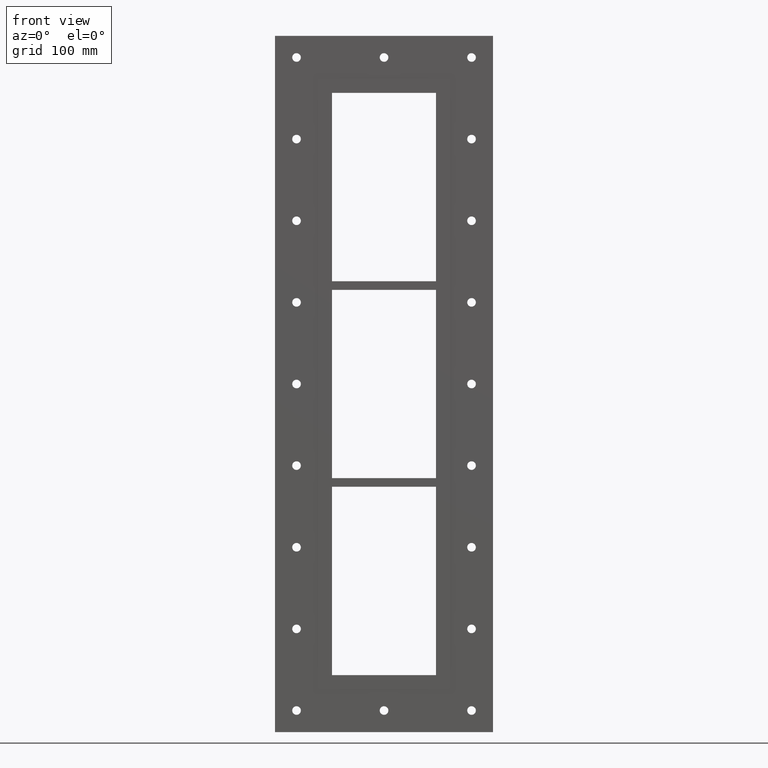
[diagram: clean part render]
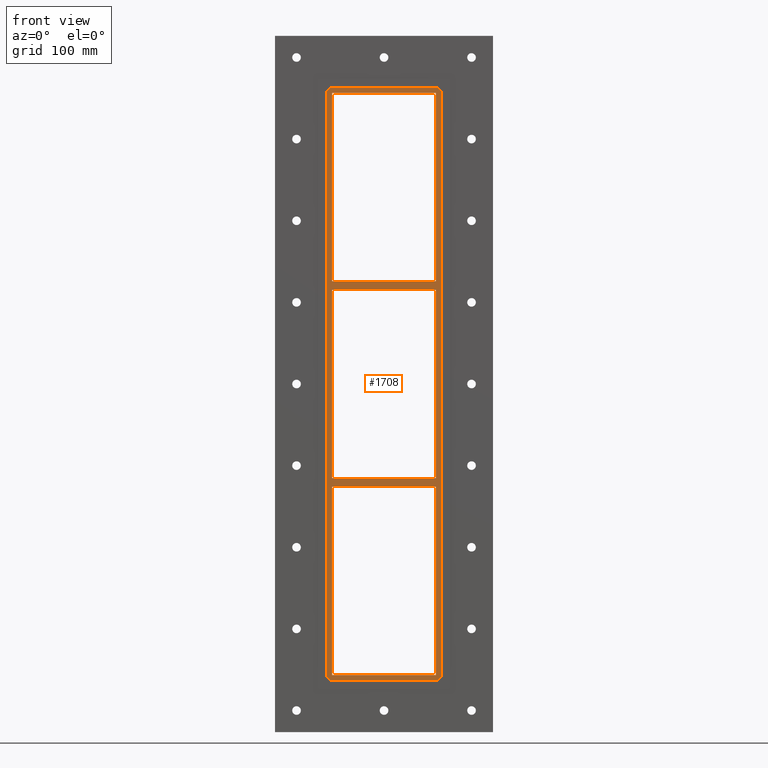
[diagram: same view with one face highlighted and labeled with its STEP entity id]
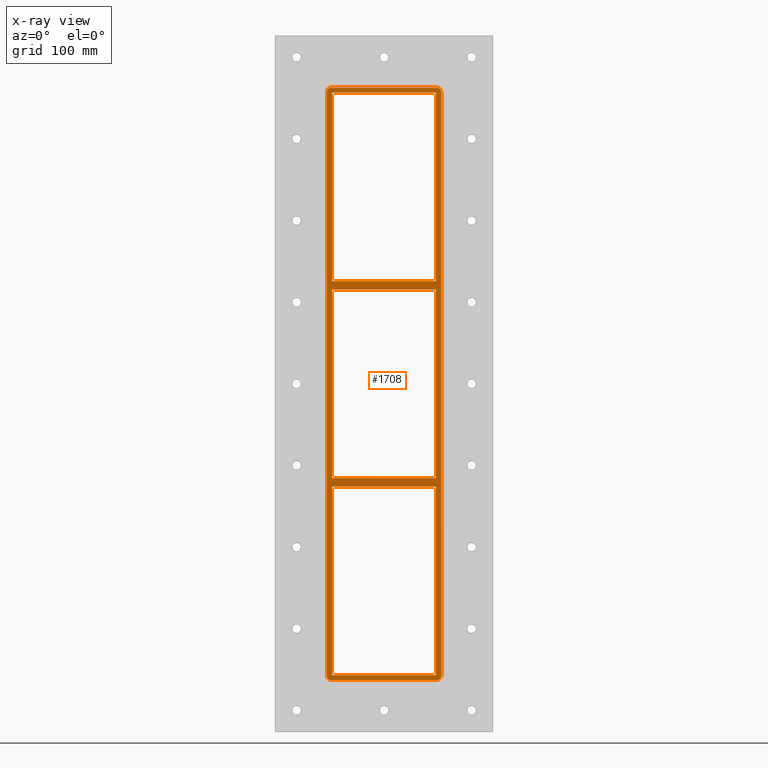
[diagram: x-ray of the same camera — body ghosted, the highlighted face saturated]
A machine part, front view. The second image highlights one B-rep face of the part: STEP entity #1708.
The next image is the same camera in x-ray: the body ghosted, the highlighted face saturated — about 0% of this face is hidden behind the body in this view.
In plain terms, the highlighted planar face has unit normal (0, 1, 0).
Its self-contained STEP definition (entity closure, byte-faithful):
#633=CARTESIAN_POINT('',(60.249999999996362,-3.0,108.99999999998904));
#634=VERTEX_POINT('',#633);
#635=CARTESIAN_POINT('',(-60.249999999999673,-3.0,108.99999999998886));
#636=VERTEX_POINT('',#635);
#637=CARTESIAN_POINT('',(60.249999999996362,-3.0,108.99999999998904));
#638=DIRECTION('',(-1.0,0.0,0.0));
#639=VECTOR('',#638,120.49999999999602);
#640=LINE('',#637,#639);
#641=EDGE_CURVE('',#634,#636,#640,.T.);
#673=CARTESIAN_POINT('',(-60.249999999999673,-3.0,118.99999999999994));
#674=VERTEX_POINT('',#673);
#675=CARTESIAN_POINT('',(60.249999999999915,-3.0,118.99999999999994));
#676=VERTEX_POINT('',#675);
#677=CARTESIAN_POINT('',(-60.249999999999673,-3.0,118.99999999999994));
#678=DIRECTION('',(1.0,0.0,0.0));
#679=VECTOR('',#678,120.49999999999957);
#680=LINE('',#677,#679);
#681=EDGE_CURVE('',#674,#676,#680,.T.);
#722=CARTESIAN_POINT('',(-60.249999999999993,-3.0,337.0));
#723=VERTEX_POINT('',#722);
#730=CARTESIAN_POINT('',(-60.249999999999993,-3.0,118.99999999999994));
#731=DIRECTION('',(0.0,0.0,1.0));
#732=VECTOR('',#731,218.00000000000011);
#733=LINE('',#730,#732);
#734=EDGE_CURVE('',#674,#723,#733,.T.);
#753=CARTESIAN_POINT('',(60.249999999999915,-3.0,-109.00000000000006));
#754=VERTEX_POINT('',#753);
#761=CARTESIAN_POINT('',(60.250000000000014,-3.0,108.99999999998903));
#762=DIRECTION('',(0.0,0.0,-1.0));
#763=VECTOR('',#762,217.99999999998909);
#764=LINE('',#761,#763);
#765=EDGE_CURVE('',#634,#754,#764,.T.);
#776=CARTESIAN_POINT('',(60.250000000000014,-3.0,337.0));
#777=VERTEX_POINT('',#776);
#778=CARTESIAN_POINT('',(60.250000000000014,-3.0,337.0));
#779=DIRECTION('',(0.0,0.0,-1.0));
#780=VECTOR('',#779,218.00000000000006);
#781=LINE('',#778,#780);
#782=EDGE_CURVE('',#777,#676,#781,.T.);
#806=CARTESIAN_POINT('',(60.249999999996362,-3.0,-119.00000000001097));
#807=VERTEX_POINT('',#806);
#808=CARTESIAN_POINT('',(-60.249999999999673,-3.0,-119.00000000001114));
#809=VERTEX_POINT('',#808);
#810=CARTESIAN_POINT('',(60.249999999996362,-3.0,-119.00000000001097));
#811=DIRECTION('',(-1.0,0.0,0.0));
#812=VECTOR('',#811,120.49999999999602);
#813=LINE('',#810,#812);
#814=EDGE_CURVE('',#807,#809,#813,.T.);
#846=CARTESIAN_POINT('',(-60.249999999999673,-3.0,-109.00000000000006));
#847=VERTEX_POINT('',#846);
#848=CARTESIAN_POINT('',(-60.249999999999673,-3.0,-109.00000000000006));
#849=DIRECTION('',(1.0,0.0,0.0));
#850=VECTOR('',#849,120.49999999999957);
#851=LINE('',#848,#850);
#852=EDGE_CURVE('',#847,#754,#851,.T.);
#878=CARTESIAN_POINT('',(-60.249999999999993,-3.0,-109.00000000000004));
#879=DIRECTION('',(0.0,0.0,1.0));
#880=VECTOR('',#879,217.99999999998892);
#881=LINE('',#878,#880);
#882=EDGE_CURVE('',#847,#636,#881,.T.);
#908=CARTESIAN_POINT('',(60.250000000000014,-3.0,-337.0));
#909=VERTEX_POINT('',#908);
#916=CARTESIAN_POINT('',(60.250000000000014,-3.0,-119.00000000001097));
#917=DIRECTION('',(0.0,0.0,-1.0));
#918=VECTOR('',#917,217.99999999998909);
#919=LINE('',#916,#918);
#920=EDGE_CURVE('',#807,#909,#919,.T.);
#1339=CARTESIAN_POINT('',(-60.249999999999993,-3.0,-337.0));
#1340=VERTEX_POINT('',#1339);
#1341=CARTESIAN_POINT('',(-60.249999999999993,-3.0,-337.0));
#1342=DIRECTION('',(0.0,0.0,1.0));
#1343=VECTOR('',#1342,217.99999999998886);
#1344=LINE('',#1341,#1343);
#1345=EDGE_CURVE('',#1340,#809,#1344,.T.);
#1370=CARTESIAN_POINT('',(60.25,-3.0,343.00000000000006));
#1371=VERTEX_POINT('',#1370);
#1378=CARTESIAN_POINT('',(66.25,-3.0,337.0));
#1379=VERTEX_POINT('',#1378);
#1380=CARTESIAN_POINT('',(60.25,-3.0,337.0));
#1381=DIRECTION('',(0.0,1.0,0.0));
#1382=DIRECTION('',(0.707106781186551,0.0,0.707106781186544));
#1383=AXIS2_PLACEMENT_3D('',#1380,#1381,#1382);
#1384=CIRCLE('',#1383,6.0);
#1385=EDGE_CURVE('',#1371,#1379,#1384,.T.);
#1435=CARTESIAN_POINT('',(66.25,-3.0,-336.99999999999994));
#1436=VERTEX_POINT('',#1435);
#1437=CARTESIAN_POINT('',(66.25,-3.0,-336.99999999999994));
#1438=DIRECTION('',(0.0,0.0,1.0));
#1439=VECTOR('',#1438,674.0);
#1440=LINE('',#1437,#1439);
#1441=EDGE_CURVE('',#1436,#1379,#1440,.T.);
#1482=CARTESIAN_POINT('',(-60.25,-3.0,343.00000000000006));
#1483=VERTEX_POINT('',#1482);
#1490=CARTESIAN_POINT('',(60.25,-3.0,343.00000000000006));
#1491=DIRECTION('',(-1.0,0.0,0.0));
#1492=VECTOR('',#1491,120.5);
#1493=LINE('',#1490,#1492);
#1494=EDGE_CURVE('',#1371,#1483,#1493,.T.);
#1507=CARTESIAN_POINT('',(60.25,-3.0,-343.00000000000006));
#1508=VERTEX_POINT('',#1507);
#1509=CARTESIAN_POINT('',(60.25,-3.0,-337.0));
#1510=DIRECTION('',(0.0,1.0,0.0));
#1511=DIRECTION('',(0.707106781186551,0.0,-0.707106781186544));
#1512=AXIS2_PLACEMENT_3D('',#1509,#1510,#1511);
#1513=CIRCLE('',#1512,6.0);
#1514=EDGE_CURVE('',#1436,#1508,#1513,.T.);
#1556=CARTESIAN_POINT('',(-66.25,-3.0,336.99999999999994));
#1557=VERTEX_POINT('',#1556);
#1564=CARTESIAN_POINT('',(-60.25,-3.0,337.0));
#1565=DIRECTION('',(0.0,1.0,0.0));
#1566=DIRECTION('',(-0.707106781186551,0.0,0.707106781186544));
#1567=AXIS2_PLACEMENT_3D('',#1564,#1565,#1566);
#1568=CIRCLE('',#1567,6.0);
#1569=EDGE_CURVE('',#1557,#1483,#1568,.T.);
#1582=CARTESIAN_POINT('',(-60.25,-3.0,-343.00000000000006));
#1583=VERTEX_POINT('',#1582);
#1584=CARTESIAN_POINT('',(-60.25,-3.0,-343.00000000000006));
#1585=DIRECTION('',(1.0,0.0,0.0));
#1586=VECTOR('',#1585,120.5);
#1587=LINE('',#1584,#1586);
#1588=EDGE_CURVE('',#1583,#1508,#1587,.T.);
#1629=CARTESIAN_POINT('',(-66.25,-3.0,-337.0));
#1630=VERTEX_POINT('',#1629);
#1637=CARTESIAN_POINT('',(-66.25,-3.0,336.99999999999994));
#1638=DIRECTION('',(0.0,0.0,-1.0));
#1639=VECTOR('',#1638,674.0);
#1640=LINE('',#1637,#1639);
#1641=EDGE_CURVE('',#1557,#1630,#1640,.T.);
#1654=CARTESIAN_POINT('',(-60.25,-3.0,-337.0));
#1655=DIRECTION('',(0.0,1.0,0.0));
#1656=DIRECTION('',(-0.707106781186551,0.0,-0.707106781186544));
#1657=AXIS2_PLACEMENT_3D('',#1654,#1655,#1656);
#1658=CIRCLE('',#1657,6.0);
#1659=EDGE_CURVE('',#1583,#1630,#1658,.T.);
#1665=CARTESIAN_POINT('',(0.0,-3.0,0.0));
#1666=DIRECTION('',(0.0,1.0,0.0));
#1667=DIRECTION('',(0.0,0.0,1.0));
#1668=AXIS2_PLACEMENT_3D('',#1665,#1666,#1667);
#1669=PLANE('',#1668);
#1670=ORIENTED_EDGE('',*,*,#1514,.F.);
#1671=ORIENTED_EDGE('',*,*,#1441,.T.);
#1672=ORIENTED_EDGE('',*,*,#1385,.F.);
#1673=ORIENTED_EDGE('',*,*,#1494,.T.);
#1674=ORIENTED_EDGE('',*,*,#1569,.F.);
#1675=ORIENTED_EDGE('',*,*,#1641,.T.);
#1676=ORIENTED_EDGE('',*,*,#1659,.F.);
#1677=ORIENTED_EDGE('',*,*,#1588,.T.);
#1678=EDGE_LOOP('',(#1670,#1671,#1672,#1673,#1674,#1675,#1676,#1677));
#1679=FACE_OUTER_BOUND('',#1678,.T.);
#1680=ORIENTED_EDGE('',*,*,#734,.T.);
#1681=CARTESIAN_POINT('',(-60.249999999999993,-3.0,337.0));
#1682=DIRECTION('',(1.0,0.0,0.0));
#1683=VECTOR('',#1682,120.5);
#1684=LINE('',#1681,#1683);
#1685=EDGE_CURVE('',#723,#777,#1684,.T.);
#1686=ORIENTED_EDGE('',*,*,#1685,.T.);
#1687=ORIENTED_EDGE('',*,*,#782,.T.);
#1688=ORIENTED_EDGE('',*,*,#681,.F.);
#1689=EDGE_LOOP('',(#1680,#1686,#1687,#1688));
#1690=FACE_BOUND('',#1689,.T.);
#1691=ORIENTED_EDGE('',*,*,#641,.F.);
#1692=ORIENTED_EDGE('',*,*,#765,.T.);
#1693=ORIENTED_EDGE('',*,*,#852,.F.);
#1694=ORIENTED_EDGE('',*,*,#882,.T.);
#1695=EDGE_LOOP('',(#1691,#1692,#1693,#1694));
#1696=FACE_BOUND('',#1695,.T.);
#1697=ORIENTED_EDGE('',*,*,#814,.F.);
#1698=ORIENTED_EDGE('',*,*,#920,.T.);
#1699=CARTESIAN_POINT('',(60.250000000000014,-3.0,-337.0));
#1700=DIRECTION('',(-1.0,0.0,0.0));
#1701=VECTOR('',#1700,120.5);
#1702=LINE('',#1699,#1701);
#1703=EDGE_CURVE('',#909,#1340,#1702,.T.);
#1704=ORIENTED_EDGE('',*,*,#1703,.T.);
#1705=ORIENTED_EDGE('',*,*,#1345,.T.);
#1706=EDGE_LOOP('',(#1697,#1698,#1704,#1705));
#1707=FACE_BOUND('',#1706,.T.);
#1708=ADVANCED_FACE('',(#1679,#1690,#1696,#1707),#1669,.F.);